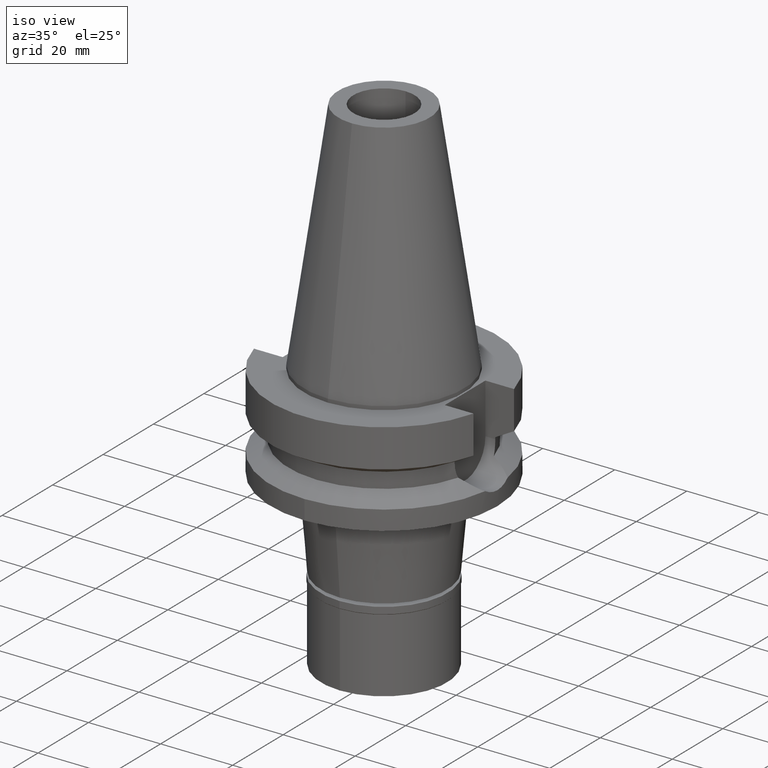
[diagram: clean part render]
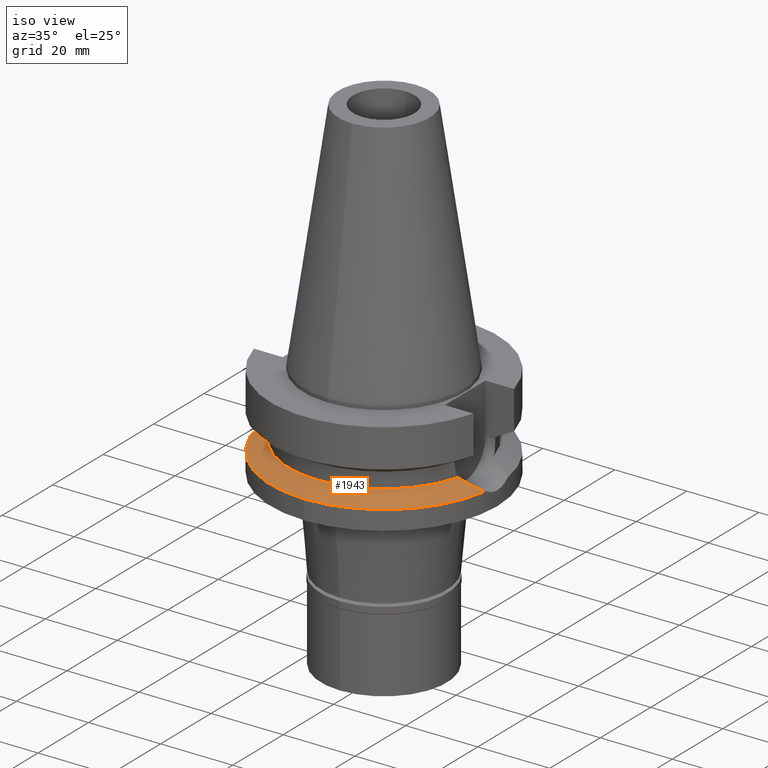
[diagram: same view with one face highlighted and labeled with its STEP entity id]
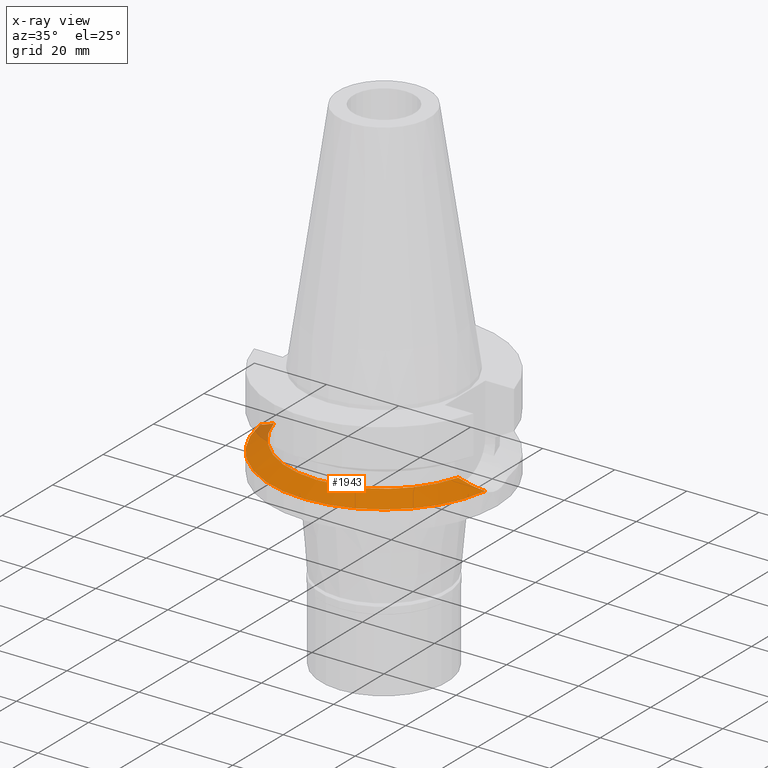
[diagram: x-ray of the same camera — body ghosted, the highlighted face saturated]
A machine part, iso view. The second image highlights one B-rep face of the part: STEP entity #1943.
The next image is the same camera in x-ray: the body ghosted, the highlighted face saturated — about 3% of this face is hidden behind the body in this view.
In plain terms, the highlighted conical surface has half-angle 60 deg.
Its self-contained STEP definition (entity closure, byte-faithful):
#11 = CARTESIAN_POINT ( 'NONE',  ( 25.53175183775000079, -7.097862220092999941, -18.74774300138999905 ) ) ;
#52 = VERTEX_POINT ( 'NONE', #3059 ) ;
#163 = DIRECTION ( 'NONE',  ( 0.0000000000000000000, 0.0000000000000000000, -1.000000000000000000 ) ) ;
#236 = CARTESIAN_POINT ( 'NONE',  ( 31.17899877608999759, -4.485536235554000051, -21.63449434733000132 ) ) ;
#253 = CARTESIAN_POINT ( 'NONE',  ( 28.24654632375923313, -6.155093236593185857, -20.13887758022251617 ) ) ;
#258 = CARTESIAN_POINT ( 'NONE',  ( -29.71829838874449337, -5.435026389750371223, -20.89029780692690963 ) ) ;
#266 = CARTESIAN_POINT ( 'NONE',  ( 26.17212399451469906, -6.921834887416557613, -19.07673254961257925 ) ) ;
#347 = EDGE_CURVE ( 'NONE', #2155, #662, #1516, .T. ) ;
#420 = CARTESIAN_POINT ( 'NONE',  ( 31.17899877608999759, -4.485536235554000051, -21.63449434733000132 ) ) ;
#464 = DIRECTION ( 'NONE',  ( -0.9634623335000935818, -0.2678438573619981722, 0.0000000000000000000 ) ) ;
#484 = CARTESIAN_POINT ( 'NONE',  ( 28.73364976554436367, -5.936010876309831374, -20.38764316961768941 ) ) ;
#509 = ORIENTED_EDGE ( 'NONE', *, *, #2464, .F. ) ;
#519 = CARTESIAN_POINT ( 'NONE',  ( -28.96710954436001018, -5.824544619855954508, -20.50686316746844184 ) ) ;
#556 = ORIENTED_EDGE ( 'NONE', *, *, #2172, .F. ) ;
#571 = ORIENTED_EDGE ( 'NONE', *, *, #1628, .F. ) ;
#582 = CARTESIAN_POINT ( 'NONE',  ( 0.0000000000000000000, 0.0000000000000000000, -21.63449434733000132 ) ) ;
#630 = CARTESIAN_POINT ( 'NONE',  ( -31.17899877608999759, -4.485536235554000051, -21.63449434733000132 ) ) ;
#662 = VERTEX_POINT ( 'NONE', #766 ) ;
#701 = CARTESIAN_POINT ( 'NONE',  ( 27.86435918377263476, -6.316252926308689730, -19.94359010589186454 ) ) ;
#721 = CARTESIAN_POINT ( 'NONE',  ( -30.85625216435878926, -4.730393970432071882, -21.47018599650202830 ) ) ;
#743 = CARTESIAN_POINT ( 'NONE',  ( -29.40350388405149218, -5.603938212028698018, -20.72965517905958066 ) ) ;
#754 = VERTEX_POINT ( 'NONE', #420 ) ;
#761 = ORIENTED_EDGE ( 'NONE', *, *, #788, .F. ) ;
#766 = CARTESIAN_POINT ( 'NONE',  ( 25.53175183775000079, -7.097862220092999941, -18.74774300138999905 ) ) ;
#769 = CARTESIAN_POINT ( 'NONE',  ( -25.53175183775000079, -7.097862220092999941, -18.74774300138999905 ) ) ;
#772 = CARTESIAN_POINT ( 'NONE',  ( -31.17899877608999759, -4.485536235554000051, -21.63449434733000132 ) ) ;
#788 = EDGE_CURVE ( 'NONE', #754, #52, #1905, .T. ) ;
#789 = AXIS2_PLACEMENT_3D ( 'NONE', #1336, #163, #1361 ) ;
#847 = B_SPLINE_CURVE_WITH_KNOTS ( 'NONE', 3,
 ( #772, #721, #1040, #1437, #258, #743, #1935, #2878, #519, #1703, #2893, #2377, #1464 ),
 .UNSPECIFIED., .F., .F.,
 ( 4, 2, 2, 1, 2, 2, 4 ),
 ( 0.0000000000000000000, 0.2500000000000008882, 0.3750000000000011102, 0.4375000000000021094, 0.4687500000000023870, 0.5000000000000026645, 1.000000000000000000 ),
 .UNSPECIFIED. ) ;
#909 = EDGE_LOOP ( 'NONE', ( #556, #761, #509, #1694, #571 ) ) ;
#918 = CARTESIAN_POINT ( 'NONE',  ( 28.79422121456662254, -5.907518177660484149, -20.41857338895112406 ) ) ;
#950 = DIRECTION ( 'NONE',  ( 0.0000000000000000000, 0.0000000000000000000, -1.000000000000000000 ) ) ;
#1040 = CARTESIAN_POINT ( 'NONE',  ( -30.50117908778555531, -4.970651603780756211, -21.28943610688037680 ) ) ;
#1274 = DIRECTION ( 'NONE',  ( 0.0000000000000000000, -1.000000000000000000, 0.0000000000000000000 ) ) ;
#1336 = CARTESIAN_POINT ( 'NONE',  ( 0.0000000000000000000, 0.0000000000000000000, -21.63449434733000132 ) ) ;
#1361 = DIRECTION ( 'NONE',  ( 0.9898094849552905306, -0.1423979757318985240, 0.0000000000000000000 ) ) ;
#1437 = CARTESIAN_POINT ( 'NONE',  ( -29.92007977566263222, -5.320280169802253489, -20.99321526959411344 ) ) ;
#1464 = CARTESIAN_POINT ( 'NONE',  ( -25.53175183775000079, -7.097862220092999941, -18.74774300138999905 ) ) ;
#1516 = CIRCLE ( 'NONE', #1902, 26.49999999999998224 ) ;
#1628 = EDGE_CURVE ( 'NONE', #1853, #2155, #847, .T. ) ;
#1658 = B_SPLINE_CURVE_WITH_KNOTS ( 'NONE', 3,
 ( #11, #266, #1916, #2587, #701, #253, #3025, #2556, #484, #918, #1847, #2858, #236 ),
 .UNSPECIFIED., .F., .F.,
 ( 4, 2, 2, 1, 2, 2, 4 ),
 ( 0.0000000000000000000, 0.2500000000000010547, 0.3750000000000016653, 0.4375000000000013323, 0.4687500000000006106, 0.4999999999999998335, 1.000000000000000000 ),
 .UNSPECIFIED. ) ;
#1694 = ORIENTED_EDGE ( 'NONE', *, *, #347, .F. ) ;
#1703 = CARTESIAN_POINT ( 'NONE',  ( -28.91290062325497701, -5.850838485467669159, -20.47918176812470747 ) ) ;
#1713 = AXIS2_PLACEMENT_3D ( 'NONE', #582, #2407, #1274 ) ;
#1847 = CARTESIAN_POINT ( 'NONE',  ( 29.75652916413529780, -5.448105611147416205, -20.90999356220572736 ) ) ;
#1853 = VERTEX_POINT ( 'NONE', #630 ) ;
#1902 = AXIS2_PLACEMENT_3D ( 'NONE', #2423, #3057, #464 ) ;
#1905 = CIRCLE ( 'NONE', #789, 31.50000000000001421 ) ;
#1916 = CARTESIAN_POINT ( 'NONE',  ( 26.76889971679631230, -6.728566986563055963, -19.38294419845960093 ) ) ;
#1935 = CARTESIAN_POINT ( 'NONE',  ( -29.24307602562605624, -5.687591951232541909, -20.64776784857496139 ) ) ;
#1943 = ADVANCED_FACE ( 'NONE', ( #2860 ), #2150, .T. ) ;
#1960 = CIRCLE ( 'NONE', #1713, 31.50000000000000000 ) ;
#2124 = CARTESIAN_POINT ( 'NONE',  ( 0.0000000000000000000, 0.0000000000000000000, -20.19111867435999841 ) ) ;
#2150 = CONICAL_SURFACE ( 'NONE', #2344, 29.00000000000000000, 1.047197551196400456 ) ;
#2155 = VERTEX_POINT ( 'NONE', #769 ) ;
#2172 = EDGE_CURVE ( 'NONE', #52, #1853, #1960, .T. ) ;
#2344 = AXIS2_PLACEMENT_3D ( 'NONE', #2124, #950, #2390 ) ;
#2377 = CARTESIAN_POINT ( 'NONE',  ( -26.81419943380917204, -6.745339351560969199, -19.40659715485463366 ) ) ;
#2390 = DIRECTION ( 'NONE',  ( 0.0000000000000000000, -1.000000000000000000, 0.0000000000000000000 ) ) ;
#2407 = DIRECTION ( 'NONE',  ( 0.0000000000000000000, 0.0000000000000000000, -1.000000000000000000 ) ) ;
#2423 = CARTESIAN_POINT ( 'NONE',  ( 0.0000000000000000000, 0.0000000000000000000, -18.74774300138999905 ) ) ;
#2464 = EDGE_CURVE ( 'NONE', #662, #754, #1658, .T. ) ;
#2556 = CARTESIAN_POINT ( 'NONE',  ( 28.61442838368106223, -5.991210968606418774, -20.32676291958354042 ) ) ;
#2587 = CARTESIAN_POINT ( 'NONE',  ( 27.59866864849412593, -6.421485500541467495, -19.80773105020917768 ) ) ;
#2858 = CARTESIAN_POINT ( 'NONE',  ( 30.53258623465156063, -4.975949163022271193, -21.30540962644920810 ) ) ;
#2860 = FACE_OUTER_BOUND ( 'NONE', #909, .T. ) ;
#2878 = CARTESIAN_POINT ( 'NONE',  ( -29.07810225808222171, -5.769943808655979112, -20.56353691852229915 ) ) ;
#2893 = CARTESIAN_POINT ( 'NONE',  ( -27.92181599709195439, -6.324301122582865808, -19.97306573289662879 ) ) ;
#3025 = CARTESIAN_POINT ( 'NONE',  ( 28.43355272801973044, -6.073684701709576750, -20.23439745110571053 ) ) ;
#3057 = DIRECTION ( 'NONE',  ( 0.0000000000000000000, 0.0000000000000000000, 1.000000000000000000 ) ) ;
#3059 = CARTESIAN_POINT ( 'NONE',  ( 0.0000000000000000000, -31.50000000000000000, -21.63449434733000132 ) ) ;